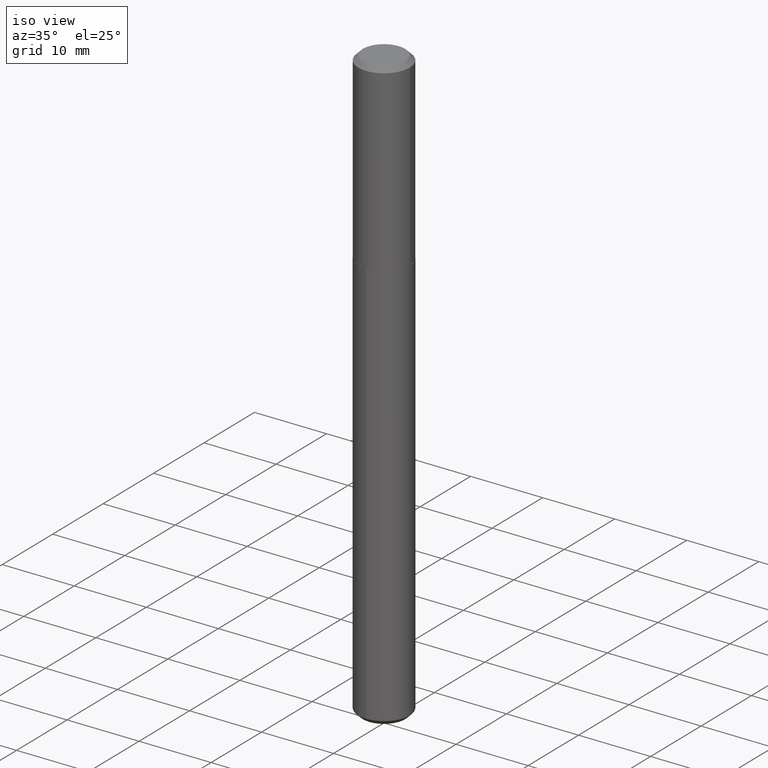
[diagram: clean part render]
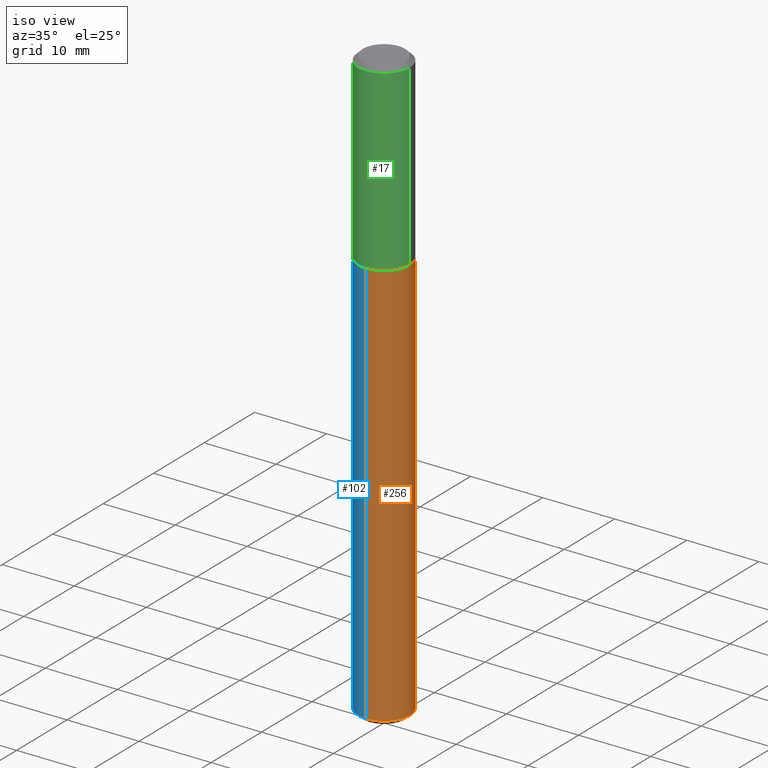
[diagram: same view with three faces highlighted in distinct colors, each labeled with its STEP entity id]
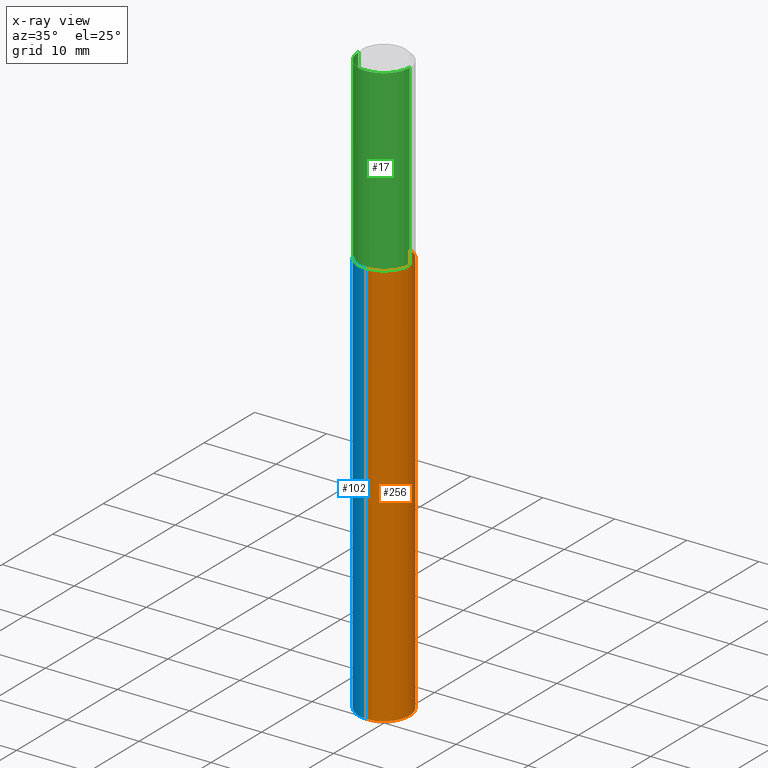
[diagram: x-ray of the same camera — body ghosted, the three highlighted faces saturated]
A machine part, iso view with three faces highlighted in distinct colors.
The next image is the same camera in x-ray (body ghosted, the three faces saturated) — at least one of them is partly hidden behind the body in this view.
Their STEP definitions:

[orange] entity #256 — the highlighted cylindrical surface (edge-blend (fillet) strip) has radius 3.5712 mm, axis along (-0, 0, 1).
#1 = VECTOR ( 'NONE', #295, 39.37007874015748143 ) ;
#18 = LINE ( 'NONE', #368, #60 ) ;
#32 = ORIENTED_EDGE ( 'NONE', *, *, #80, .F. ) ;
#39 = CARTESIAN_POINT ( 'NONE',  ( -9.818045524826644539E-16, -0.1406000000000034722, -0.9999999999999994449 ) ) ;
#60 = VECTOR ( 'NONE', #336, 39.37007874015748143 ) ;
#80 = EDGE_CURVE ( 'NONE', #314, #131, #238, .T. ) ;
#96 = EDGE_CURVE ( 'NONE', #314, #388, #236, .T. ) ;
#105 = CARTESIAN_POINT ( 'NONE',  ( 7.887326628377320110E-29, -1.125903958740011651E-14, -3.225000000000000089 ) ) ;
#114 = DIRECTION ( 'NONE',  ( -6.982962677686265133E-15, -1.000000000000000000, 3.885985766236505386E-15 ) ) ;
#120 = CYLINDRICAL_SURFACE ( 'NONE', #344, 0.1406000000000000028 ) ;
#131 = VERTEX_POINT ( 'NONE', #39 ) ;
#135 = ORIENTED_EDGE ( 'NONE', *, *, #299, .T. ) ;
#143 = AXIS2_PLACEMENT_3D ( 'NONE', #105, #354, #271 ) ;
#149 = DIRECTION ( 'NONE',  ( -2.445778796490868869E-29, 3.491037415081784460E-15, 1.000000000000000000 ) ) ;
#175 = CARTESIAN_POINT ( 'NONE',  ( 2.445468806185136597E-29, -3.491481338843145583E-15, -1.000000000000000000 ) ) ;
#176 = CARTESIAN_POINT ( 'NONE',  ( 2.445468806185137438E-29, -3.491481338843146371E-15, -1.000000000000000222 ) ) ;
#178 = FACE_OUTER_BOUND ( 'NONE', #407, .T. ) ;
#236 = CIRCLE ( 'NONE', #143, 0.1406000000000000028 ) ;
#238 = LINE ( 'NONE', #360, #1 ) ;
#245 = CIRCLE ( 'NONE', #401, 0.1406000000000000028 ) ;
#250 = DIRECTION ( 'NONE',  ( -6.982962677686265133E-15, -1.000000000000000000, 3.885985766236505386E-15 ) ) ;
#256 = ADVANCED_FACE ( 'NONE', ( #178 ), #120, .T. ) ;
#268 = ORIENTED_EDGE ( 'NONE', *, *, #96, .T. ) ;
#271 = DIRECTION ( 'NONE',  ( -6.982962677686265133E-15, -1.000000000000000000, 3.885985766236505386E-15 ) ) ;
#295 = DIRECTION ( 'NONE',  ( -2.445778796490868588E-29, 3.491037415081784460E-15, 1.000000000000000000 ) ) ;
#298 = ORIENTED_EDGE ( 'NONE', *, *, #322, .F. ) ;
#299 = EDGE_CURVE ( 'NONE', #388, #380, #18, .T. ) ;
#303 = CARTESIAN_POINT ( 'NONE',  ( 9.990230864787799642E-16, 0.1405999999999887895, -3.225000000000000533 ) ) ;
#314 = VERTEX_POINT ( 'NONE', #396 ) ;
#322 = EDGE_CURVE ( 'NONE', #131, #380, #245, .T. ) ;
#331 = DIRECTION ( 'NONE',  ( -2.445778796490868869E-29, 3.491037415081784460E-15, 1.000000000000000000 ) ) ;
#336 = DIRECTION ( 'NONE',  ( -2.445778796490868588E-29, 3.491037415081784460E-15, 1.000000000000000000 ) ) ;
#344 = AXIS2_PLACEMENT_3D ( 'NONE', #176, #331, #250 ) ;
#354 = DIRECTION ( 'NONE',  ( -2.445778796490868869E-29, 3.491037415081784460E-15, 1.000000000000000000 ) ) ;
#360 = CARTESIAN_POINT ( 'NONE',  ( -9.818045524826644539E-16, -0.1406000000000034722, -0.9999999999999996669 ) ) ;
#363 = CARTESIAN_POINT ( 'NONE',  ( 9.990230864787801614E-16, 0.1405999999999965333, -1.000000000000000444 ) ) ;
#368 = CARTESIAN_POINT ( 'NONE',  ( 9.990230864787251384E-16, 0.1405999999999965056, -1.000000000000000888 ) ) ;
#380 = VERTEX_POINT ( 'NONE', #363 ) ;
#388 = VERTEX_POINT ( 'NONE', #303 ) ;
#396 = CARTESIAN_POINT ( 'NONE',  ( -9.818045524826098253E-16, -0.1406000000000111883, -3.224999999999999645 ) ) ;
#401 = AXIS2_PLACEMENT_3D ( 'NONE', #175, #149, #114 ) ;
#407 = EDGE_LOOP ( 'NONE', ( #268, #135, #298, #32 ) ) ;

[blue] entity #102 — the highlighted cylindrical surface (edge-blend (fillet) strip) has radius 3.5712 mm, axis along (-0, 0, 1).
#1 = VECTOR ( 'NONE', #295, 39.37007874015748143 ) ;
#8 = DIRECTION ( 'NONE',  ( -6.982962677686265133E-15, -1.000000000000000000, 3.885985766236505386E-15 ) ) ;
#18 = LINE ( 'NONE', #368, #60 ) ;
#26 = CIRCLE ( 'NONE', #111, 0.1406000000000000028 ) ;
#39 = CARTESIAN_POINT ( 'NONE',  ( -9.818045524826644539E-16, -0.1406000000000034722, -0.9999999999999994449 ) ) ;
#60 = VECTOR ( 'NONE', #336, 39.37007874015748143 ) ;
#71 = CYLINDRICAL_SURFACE ( 'NONE', #110, 0.1406000000000000028 ) ;
#80 = EDGE_CURVE ( 'NONE', #314, #131, #238, .T. ) ;
#91 = CARTESIAN_POINT ( 'NONE',  ( 7.887326628377320110E-29, -1.125903958740011651E-14, -3.225000000000000089 ) ) ;
#102 = ADVANCED_FACE ( 'NONE', ( #198 ), #71, .T. ) ;
#110 = AXIS2_PLACEMENT_3D ( 'NONE', #200, #416, #8 ) ;
#111 = AXIS2_PLACEMENT_3D ( 'NONE', #91, #390, #218 ) ;
#131 = VERTEX_POINT ( 'NONE', #39 ) ;
#146 = CARTESIAN_POINT ( 'NONE',  ( 2.445468806185136597E-29, -3.491481338843145583E-15, -1.000000000000000000 ) ) ;
#160 = ORIENTED_EDGE ( 'NONE', *, *, #281, .F. ) ;
#167 = ORIENTED_EDGE ( 'NONE', *, *, #80, .T. ) ;
#172 = EDGE_CURVE ( 'NONE', #388, #314, #26, .T. ) ;
#191 = EDGE_LOOP ( 'NONE', ( #357, #282, #167, #160 ) ) ;
#198 = FACE_OUTER_BOUND ( 'NONE', #191, .T. ) ;
#200 = CARTESIAN_POINT ( 'NONE',  ( 2.445468806185137438E-29, -3.491481338843146371E-15, -1.000000000000000222 ) ) ;
#205 = AXIS2_PLACEMENT_3D ( 'NONE', #146, #274, #392 ) ;
#218 = DIRECTION ( 'NONE',  ( -6.982962677686265133E-15, -1.000000000000000000, 3.885985766236505386E-15 ) ) ;
#238 = LINE ( 'NONE', #360, #1 ) ;
#266 = CIRCLE ( 'NONE', #205, 0.1406000000000000028 ) ;
#274 = DIRECTION ( 'NONE',  ( -2.445778796490868869E-29, 3.491037415081784460E-15, 1.000000000000000000 ) ) ;
#281 = EDGE_CURVE ( 'NONE', #380, #131, #266, .T. ) ;
#282 = ORIENTED_EDGE ( 'NONE', *, *, #172, .T. ) ;
#295 = DIRECTION ( 'NONE',  ( -2.445778796490868588E-29, 3.491037415081784460E-15, 1.000000000000000000 ) ) ;
#299 = EDGE_CURVE ( 'NONE', #388, #380, #18, .T. ) ;
#303 = CARTESIAN_POINT ( 'NONE',  ( 9.990230864787799642E-16, 0.1405999999999887895, -3.225000000000000533 ) ) ;
#314 = VERTEX_POINT ( 'NONE', #396 ) ;
#336 = DIRECTION ( 'NONE',  ( -2.445778796490868588E-29, 3.491037415081784460E-15, 1.000000000000000000 ) ) ;
#357 = ORIENTED_EDGE ( 'NONE', *, *, #299, .F. ) ;
#360 = CARTESIAN_POINT ( 'NONE',  ( -9.818045524826644539E-16, -0.1406000000000034722, -0.9999999999999996669 ) ) ;
#363 = CARTESIAN_POINT ( 'NONE',  ( 9.990230864787801614E-16, 0.1405999999999965333, -1.000000000000000444 ) ) ;
#368 = CARTESIAN_POINT ( 'NONE',  ( 9.990230864787251384E-16, 0.1405999999999965056, -1.000000000000000888 ) ) ;
#380 = VERTEX_POINT ( 'NONE', #363 ) ;
#388 = VERTEX_POINT ( 'NONE', #303 ) ;
#390 = DIRECTION ( 'NONE',  ( -2.445778796490868869E-29, 3.491037415081784460E-15, 1.000000000000000000 ) ) ;
#392 = DIRECTION ( 'NONE',  ( -6.982962677686265133E-15, -1.000000000000000000, 3.885985766236505386E-15 ) ) ;
#396 = CARTESIAN_POINT ( 'NONE',  ( -9.818045524826098253E-16, -0.1406000000000111883, -3.224999999999999645 ) ) ;
#416 = DIRECTION ( 'NONE',  ( -2.445778796490868869E-29, 3.491037415081784460E-15, 1.000000000000000000 ) ) ;

[green] entity #17 — the highlighted cylindrical surface (edge-blend (fillet) strip) has radius 3.5712 mm, axis along (-0, 0, 1).
#3 = CARTESIAN_POINT ( 'NONE',  ( 0.000000000000000000, 0.000000000000000000, 0.000000000000000000 ) ) ;
#10 = VECTOR ( 'NONE', #325, 39.37007874015748143 ) ;
#14 = CIRCLE ( 'NONE', #87, 0.1406000000000001138 ) ;
#16 = CARTESIAN_POINT ( 'NONE',  ( 2.444246071782043795E-29, -3.489735598173723685E-15, -0.9994999999999999440 ) ) ;
#17 = ADVANCED_FACE ( 'NONE', ( #133 ), #381, .T. ) ;
#24 = VERTEX_POINT ( 'NONE', #291 ) ;
#33 = AXIS2_PLACEMENT_3D ( 'NONE', #140, #358, #269 ) ;
#37 = CARTESIAN_POINT ( 'NONE',  ( 0.1406000000000000583, -9.818045524826896975E-16, 6.855904546769089077E-30 ) ) ;
#46 = EDGE_CURVE ( 'NONE', #209, #321, #107, .T. ) ;
#59 = EDGE_CURVE ( 'NONE', #139, #24, #73, .T. ) ;
#70 = DIRECTION ( 'NONE',  ( 1.000000000000000000, -6.982962677686268288E-15, 4.876176775795936353E-29 ) ) ;
#73 = LINE ( 'NONE', #37, #277 ) ;
#76 = DIRECTION ( 'NONE',  ( -2.445468806185136597E-29, 3.491481338843145583E-15, 1.000000000000000000 ) ) ;
#86 = CARTESIAN_POINT ( 'NONE',  ( -0.1406000000000001138, -2.490712511695022015E-15, -0.9994999999999999440 ) ) ;
#87 = AXIS2_PLACEMENT_3D ( 'NONE', #16, #208, #276 ) ;
#90 = CARTESIAN_POINT ( 'NONE',  ( -0.1406000000000000028, -7.894882293437000297E-16, -0.02500000000000016792 ) ) ;
#107 = LINE ( 'NONE', #202, #10 ) ;
#117 = EDGE_CURVE ( 'NONE', #321, #24, #337, .T. ) ;
#133 = FACE_OUTER_BOUND ( 'NONE', #232, .T. ) ;
#139 = VERTEX_POINT ( 'NONE', #173 ) ;
#140 = CARTESIAN_POINT ( 'NONE',  ( 6.113672015462882830E-31, -8.728703347107923368E-17, -0.02500000000000016792 ) ) ;
#173 = CARTESIAN_POINT ( 'NONE',  ( 0.1406000000000001138, -4.471540150656413579E-15, -0.9994999999999999440 ) ) ;
#193 = EDGE_CURVE ( 'NONE', #209, #139, #14, .T. ) ;
#202 = CARTESIAN_POINT ( 'NONE',  ( -0.1406000000000000583, 9.990230864787012753E-16, -6.916022736898400541E-30 ) ) ;
#208 = DIRECTION ( 'NONE',  ( -2.445468806185136597E-29, 3.491481338843145583E-15, 1.000000000000000000 ) ) ;
#209 = VERTEX_POINT ( 'NONE', #86 ) ;
#232 = EDGE_LOOP ( 'NONE', ( #355, #292, #403, #386 ) ) ;
#233 = DIRECTION ( 'NONE',  ( -2.445468806185136877E-29, 3.491481338843145188E-15, 1.000000000000000000 ) ) ;
#269 = DIRECTION ( 'NONE',  ( 1.000000000000000000, -6.982962677686266711E-15, 0.000000000000000000 ) ) ;
#276 = DIRECTION ( 'NONE',  ( 1.000000000000000000, -6.982962677686266711E-15, 0.000000000000000000 ) ) ;
#277 = VECTOR ( 'NONE', #233, 39.37007874015748143 ) ;
#291 = CARTESIAN_POINT ( 'NONE',  ( 0.1406000000000000028, -1.069091585953768426E-15, -0.02500000000000016792 ) ) ;
#292 = ORIENTED_EDGE ( 'NONE', *, *, #193, .T. ) ;
#321 = VERTEX_POINT ( 'NONE', #90 ) ;
#325 = DIRECTION ( 'NONE',  ( -2.445468806185136877E-29, 3.491481338843145188E-15, 1.000000000000000000 ) ) ;
#337 = CIRCLE ( 'NONE', #33, 0.1406000000000000028 ) ;
#355 = ORIENTED_EDGE ( 'NONE', *, *, #46, .F. ) ;
#358 = DIRECTION ( 'NONE',  ( -2.445468806185136597E-29, 3.491481338843145583E-15, 1.000000000000000000 ) ) ;
#381 = CYLINDRICAL_SURFACE ( 'NONE', #409, 0.1406000000000000583 ) ;
#386 = ORIENTED_EDGE ( 'NONE', *, *, #117, .F. ) ;
#403 = ORIENTED_EDGE ( 'NONE', *, *, #59, .T. ) ;
#409 = AXIS2_PLACEMENT_3D ( 'NONE', #3, #76, #70 ) ;